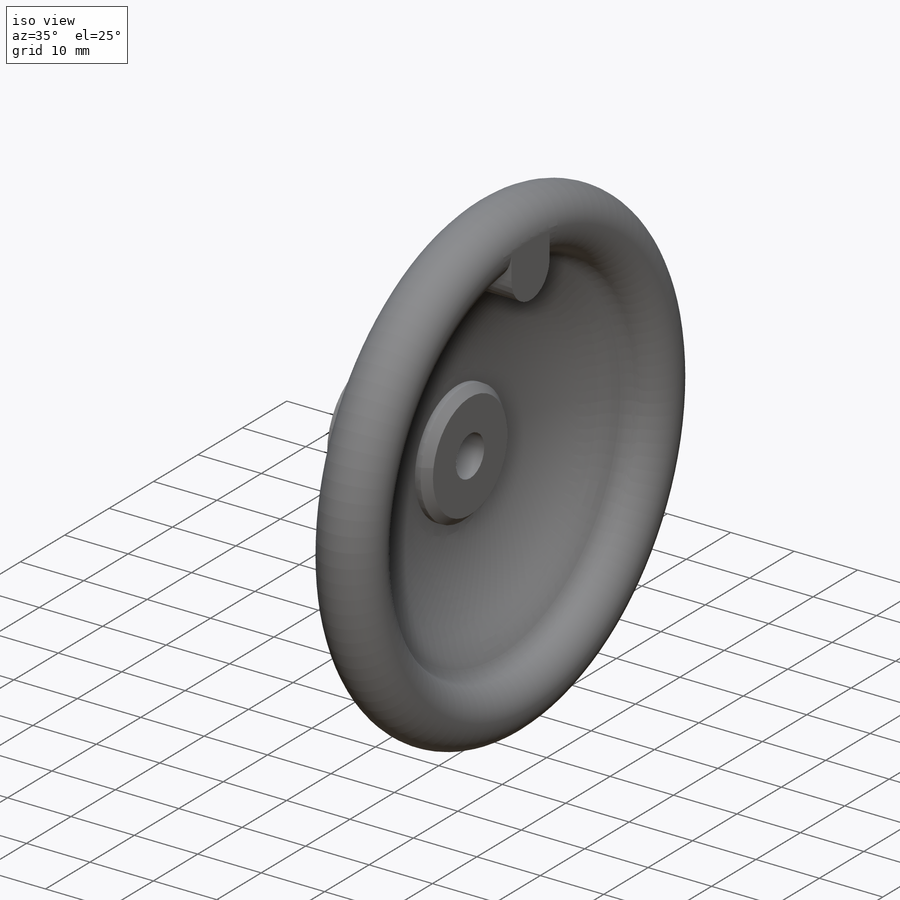
[diagram: iso view]
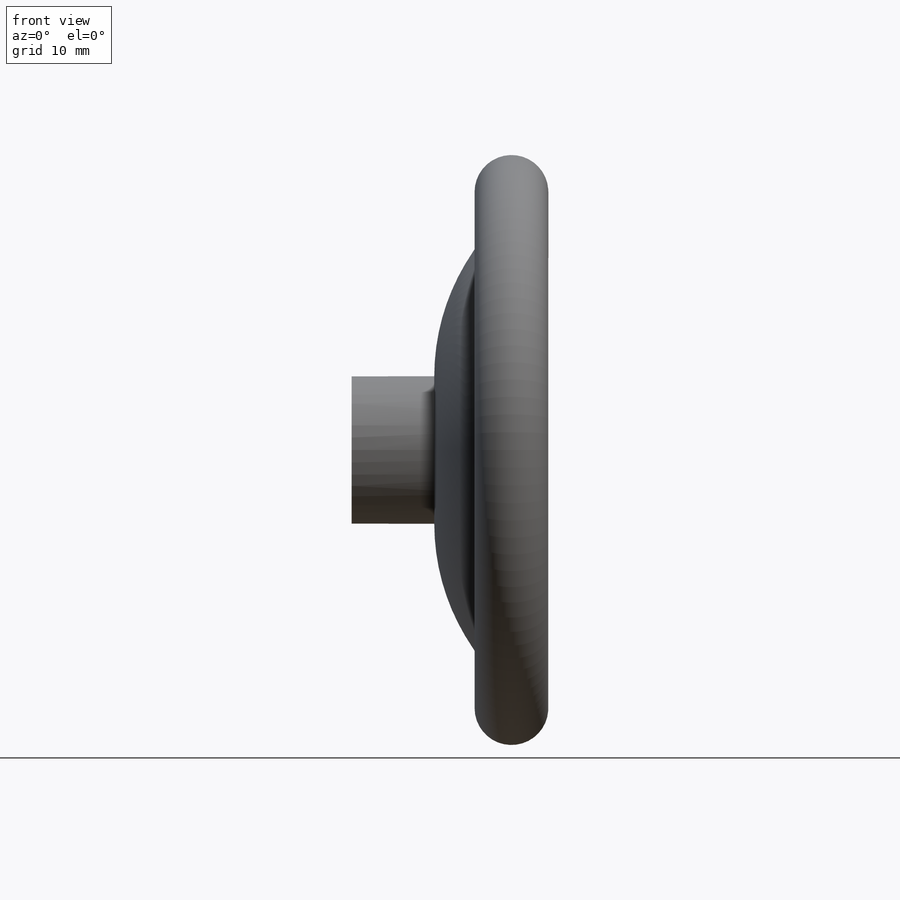
[diagram: front view]
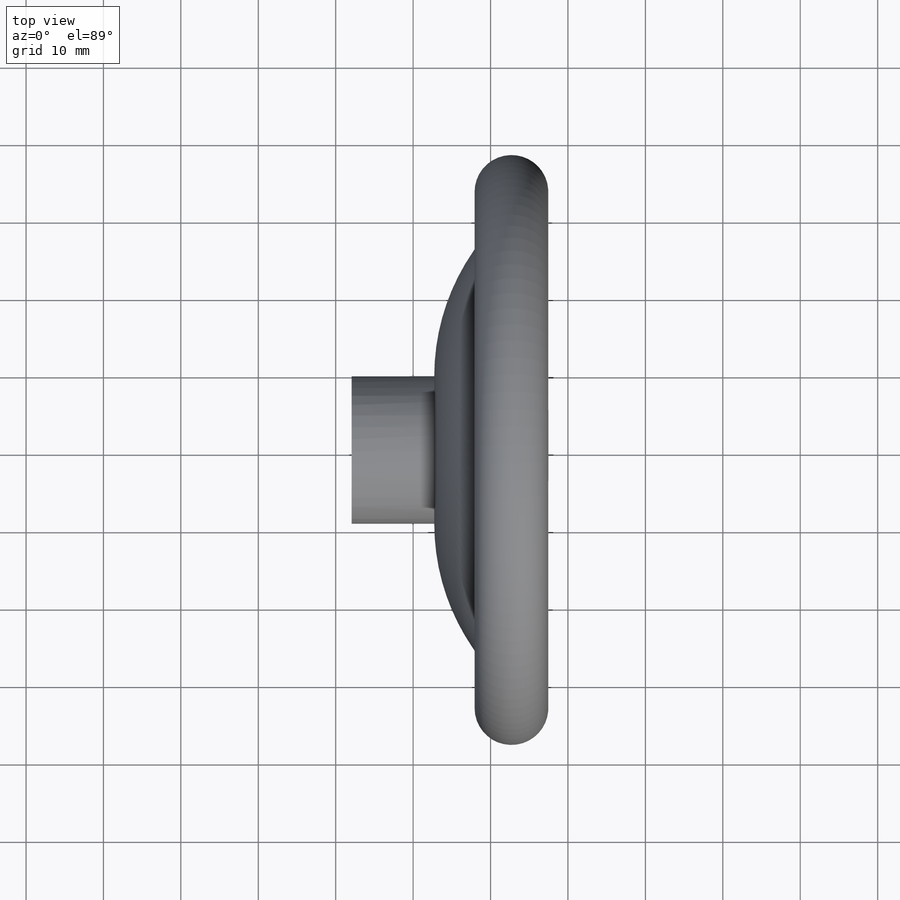
[diagram: top view]
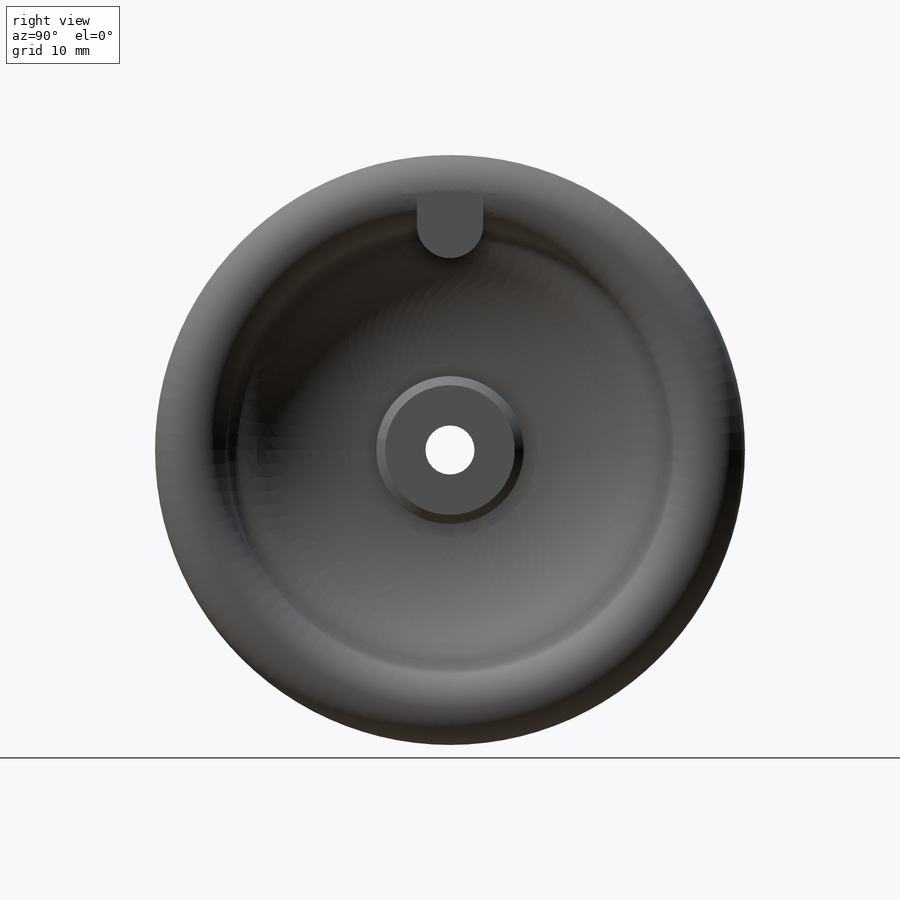
[diagram: right view]
SOLIDWORKS PART (.sldprt)
format: sldprt  version: not decoded by parser v0  size: 484,864 bytes
history: native  units: mm
features: sketch x5, revolve x2, fillet x2, material x1, plane x1, extrude x1 (+15 scaffold rows collapsed)
feature tree (27):
  scaffold x15  (default folders/planes/origin — collapsed)
  material  "Material <not specified>"
  sketch  "Sketch1"  dims[c1.Radius=9.525mm c1.A=76.2mm c1.D3=26.67mm c1.Hole Dia=15.875mm c1.C=57.15mm c1.D=15.875mm c1.D7=~20.687666mm c1.B=31.75mm c1.E=83.3501mm c2.B=31.75mm c3.B=25.4mm c3.D1=~8.995833mm c3.D2=9.525mm c3.C=19.05mm c3.Hole Dia=6.35mm c4.D1=76.2mm]
  sketch  "Sketch2"  dims[c1.D2=11.1125mm c1.D1=~8.334375mm c1.D3=~9.822942mm c1.D4=~30.128211mm c1.D5=~10.71372mm c2.D4=5.715mm c2.D1=22.225mm c2.D3=~8.334375mm c2.D5=11.1125mm c2.D6=~5.55625mm c3.D4=~8.334375mm c3.D7=25.4mm c3.D8=~4.233333mm c4.D7=~17.445984mm c4.D3=45.72mm c4.D5=~6.282716mm c4.D6=~3.103069mm c5.D6=45.0deg c5.D7=2.032mm c5.D8=~6.282716mm c6.D6=~13.645168mm c7.D6=45.0deg c7.D9=1.143mm c7.D3=~49.231197mm c7.D10=~14.769359mm c8.D3=31.75mm c8.D1=9.525mm c8.D2=5.08mm c9.D3=5.08mm c9.D1=11.1125mm c9.D4=3.175mm c10.D1=6.35mm c10.D2=3.175mm c11.D1=0.0mm c11.D2=0.0mm]
  revolve  "Dished Wheel"  Angle=360deg
  fillet  "Fillet1"  Radius=5.55625mm
  plane  "Plane1"
  sketch  "Sketch3"  dims[Handle base Dia=28.575mm D2=34.29mm D1=8.5725mm]
  extrude  "Mount"  [1 undecoded]
  sketch  "Sketch5"  dims[c1.D4=2.032mm c1.D3=~81.624307mm c1.Handle OD=30.48mm c1.D2=22.6695mm c2.D3=13.0937mm c2.D1=~30.00375mm c2.E=~83.351158mm c2.D6=23.8125mm c2.D4=2.032mm c2.D2=~10.00125mm c3.D3=7.112mm c3.E=~83.34375mm c3.D1=~15.001875mm c3.D2=~15.124906mm c4.D3=~12.263437mm c4.D4=~11.037094mm c5.D3=~8.175625mm c5.D4=25.7175mm c5.D2=~66.58805mm c6.D2=~11.134276deg c7.D2=~10.219531mm c7.D3=~12.263437mm c8.D2=~6.00075mm c8.D3=~4.500562mm c8.D4=2.9845mm c8.D5=~9.326562mm c9.D2=~6.024432mm c10.D2=80.0deg]
  revolve  "Handle"  Angle=360deg
  fillet  "Fillet2"  Radius=1.016mm
  sketch  "Ref"
decode coverage: 8 of 10 modeling features carry decoded parameters
note: ~ marks probable driven/reference dimensions
note: 1 parameter value undecoded
note: suppression state not decoded; provenance and decode notes live in map.json
